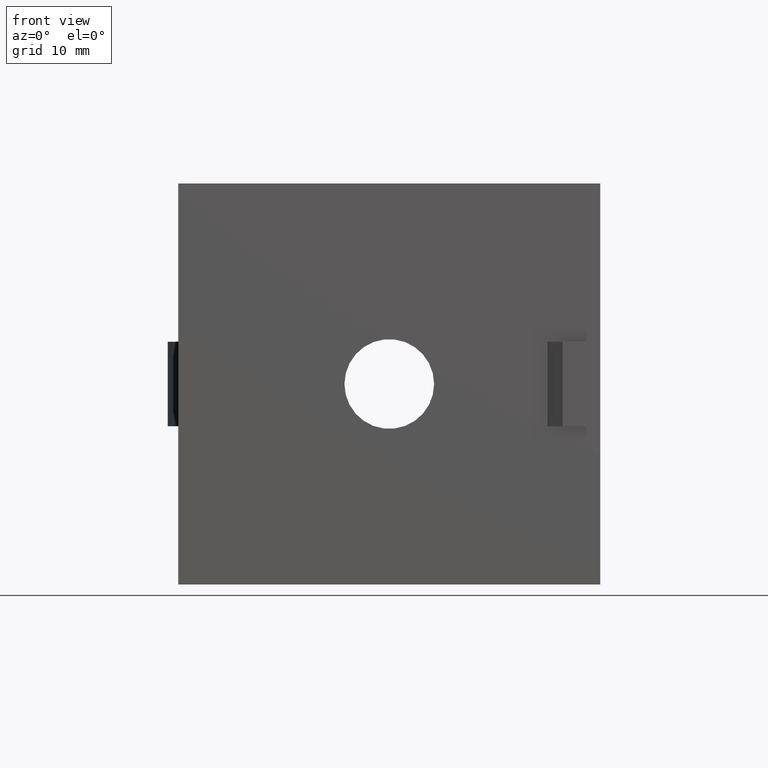
[diagram: clean part render]
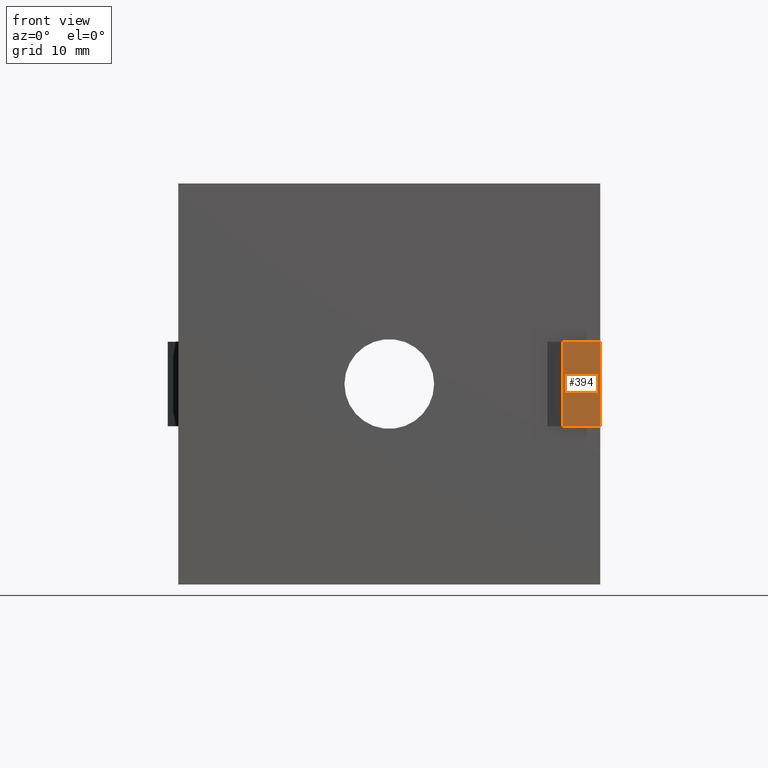
[diagram: same view with one face highlighted and labeled with its STEP entity id]
A machine part, front view. The second image highlights one B-rep face of the part: STEP entity #394.
In plain terms, the highlighted planar face has unit normal (0, -1, 0).
Its self-contained STEP definition (entity closure, byte-faithful):
#37=FACE_OUTER_BOUND('',#58,.T.);
#58=EDGE_LOOP('',(#271,#272,#273,#274));
#86=LINE('',#564,#131);
#88=LINE('',#568,#133);
#89=LINE('',#570,#134);
#90=LINE('',#571,#135);
#131=VECTOR('',#453,8.);
#133=VECTOR('',#457,3.56684795819318);
#134=VECTOR('',#458,8.);
#135=VECTOR('',#459,3.56684795819318);
#176=VERTEX_POINT('',#561);
#177=VERTEX_POINT('',#563);
#178=VERTEX_POINT('',#567);
#179=VERTEX_POINT('',#569);
#214=EDGE_CURVE('',#176,#177,#86,.T.);
#216=EDGE_CURVE('',#176,#178,#88,.T.);
#217=EDGE_CURVE('',#178,#179,#89,.T.);
#218=EDGE_CURVE('',#177,#179,#90,.T.);
#271=ORIENTED_EDGE('',*,*,#214,.F.);
#272=ORIENTED_EDGE('',*,*,#216,.T.);
#273=ORIENTED_EDGE('',*,*,#217,.T.);
#274=ORIENTED_EDGE('',*,*,#218,.F.);
#378=PLANE('',#417);
#394=ADVANCED_FACE('',(#37),#378,.T.);
#417=AXIS2_PLACEMENT_3D('',#566,#455,#456);
#453=DIRECTION('',(0.,0.,1.));
#455=DIRECTION('center_axis',(0.,-1.,0.));
#456=DIRECTION('ref_axis',(0.,0.,-1.));
#457=DIRECTION('',(1.,0.,0.));
#458=DIRECTION('',(0.,0.,1.));
#459=DIRECTION('',(1.,0.,0.));
#561=CARTESIAN_POINT('',(36.4331383916954,-0.999999777934136,-4.));
#563=CARTESIAN_POINT('',(36.4331383916954,-0.999999777934136,4.));
#564=CARTESIAN_POINT('',(36.4331383916954,-0.999999777934136,-4.));
#566=CARTESIAN_POINT('Origin',(36.4331383916954,-0.999999777934136,-19.));
#567=CARTESIAN_POINT('',(39.9999863498886,-0.999999777934136,-4.));
#568=CARTESIAN_POINT('',(36.4331383916954,-0.999999777934136,-4.));
#569=CARTESIAN_POINT('',(39.9999863498886,-0.999999777934136,4.));
#570=CARTESIAN_POINT('',(39.9999863498886,-0.999999777934136,-4.));
#571=CARTESIAN_POINT('',(36.4331383916954,-0.999999777934136,4.));